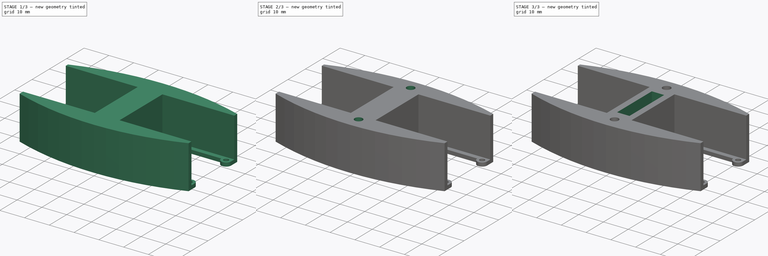
[diagram: build sequence overview — one tinted view per stage of 3, left to right]
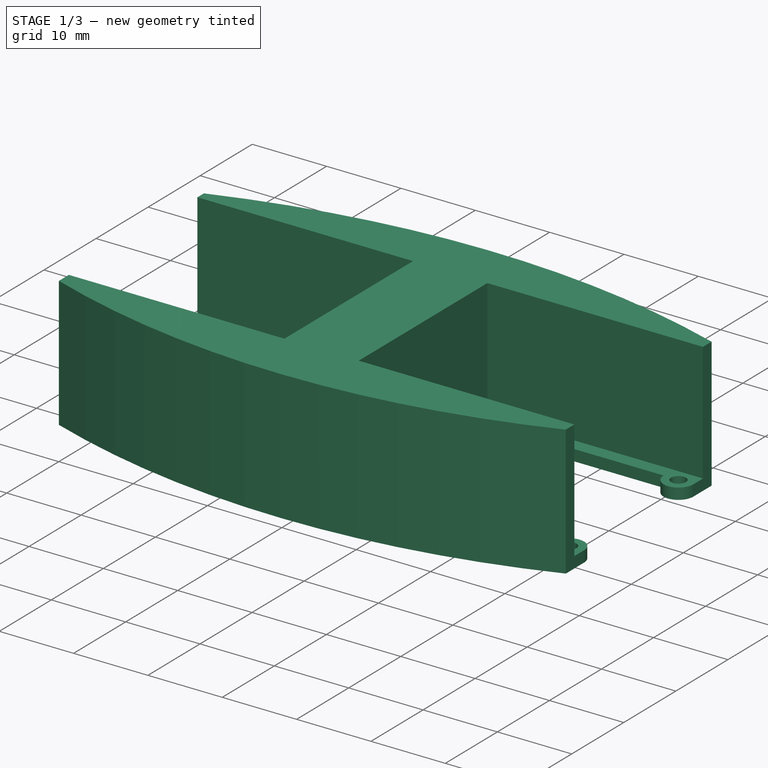
[diagram: stage 1 of 3 — iso view after this stage's code; geometry added in this stage tinted green]
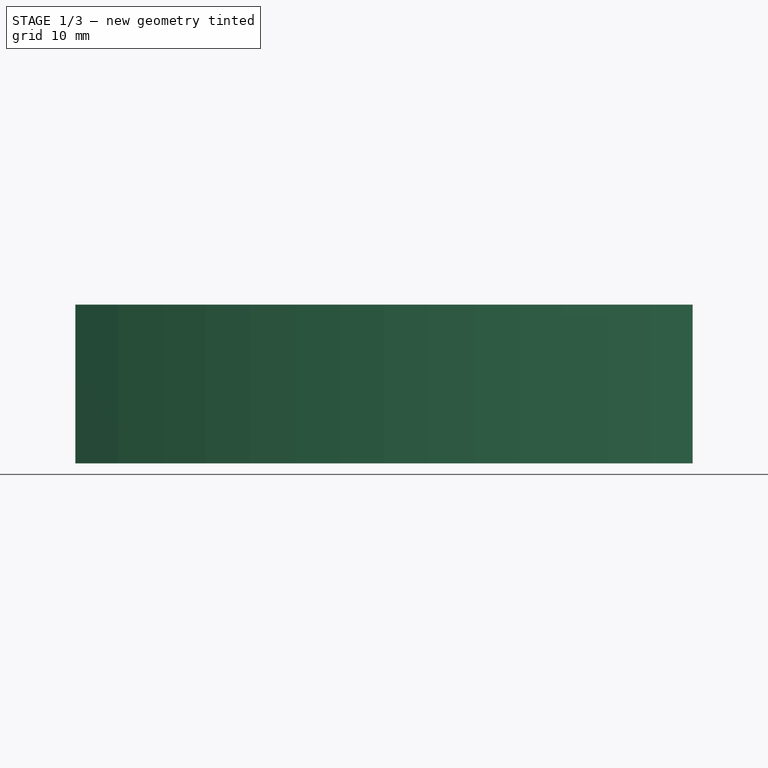
[diagram: stage 1 of 3 — front view after this stage's code; geometry added in this stage tinted green]
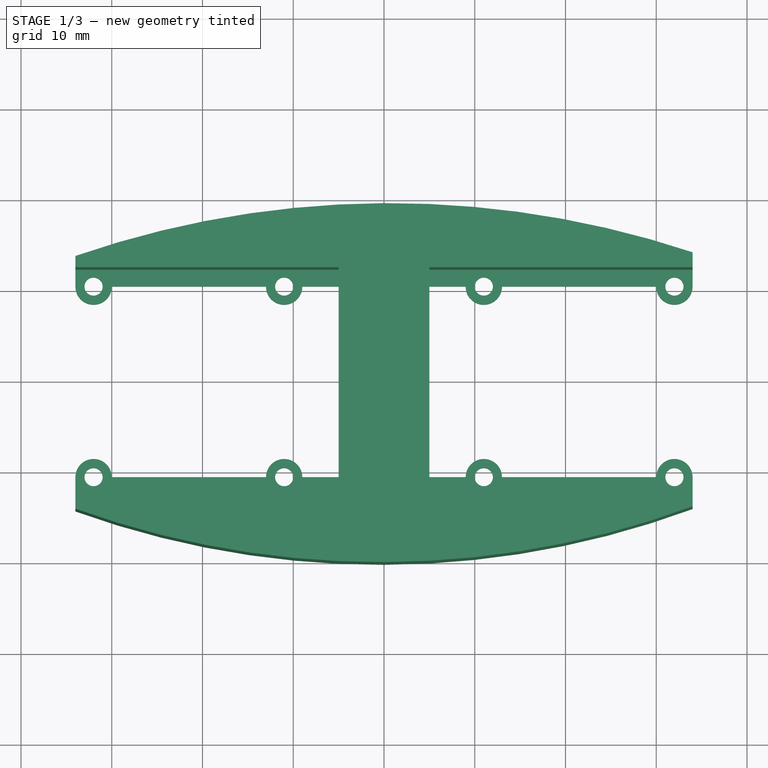
[diagram: stage 1 of 3 — top view after this stage's code; geometry added in this stage tinted green]
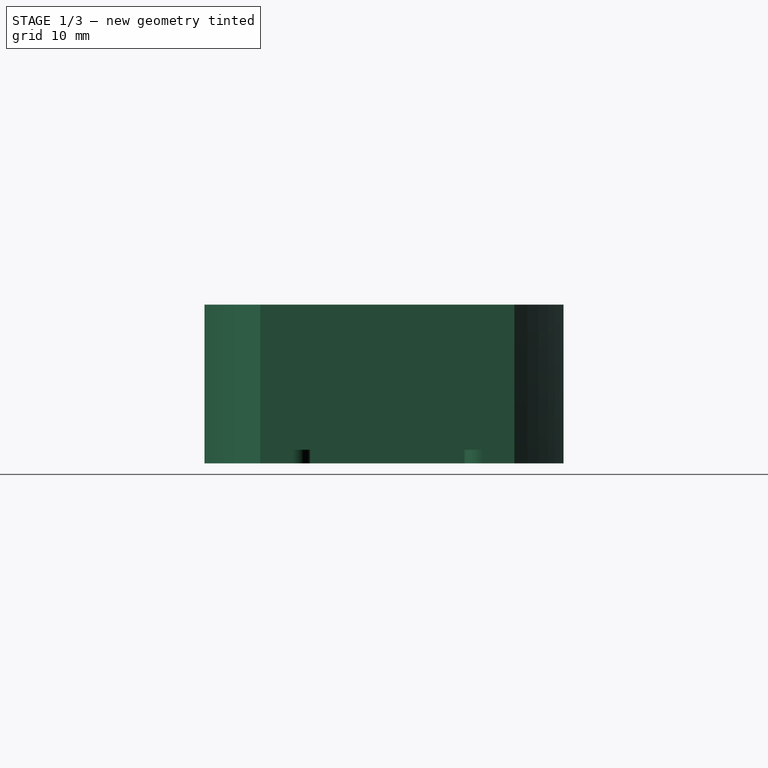
[diagram: stage 1 of 3 — right view after this stage's code; geometry added in this stage tinted green]
FCSTD DOCUMENT  (FreeCAD 0.16R6712 (Git))
Label: 1-1
License: All rights reserved
LicenseURL: http://en.wikipedia.org/wiki/All_rights_reserved
objects: Sketcher::SketchObject×5, PartDesign::Pocket×3, PartDesign::Pad×2
note: 15 computed .brp shape members not serialized (recipe doc carries the construction recipe); baked Part::Feature solids carry a one-line shape summary decoded from their .brp

FEATURE [Sketcher::SketchObject] Sketch
  sketch-geometry (32):
    g0: Circle CenterX=11 CenterY=10.5 CenterZ=0 NormalX=0 NormalY=0 NormalZ=1 Radius=1
    g1: Circle CenterX=11 CenterY=-10.5 CenterZ=0 NormalX=0 NormalY=0 NormalZ=1 Radius=1
    g2: Circle CenterX=32 CenterY=10.5 CenterZ=0 NormalX=0 NormalY=0 NormalZ=1 Radius=1
    g3: Circle CenterX=32 CenterY=-10.5 CenterZ=0 NormalX=0 NormalY=0 NormalZ=1 Radius=1
    g4: LineSegment StartX=13 StartY=10.5 StartZ=0 EndX=30 EndY=10.5 EndZ=0
    g5: LineSegment StartX=9 StartY=10.5 StartZ=0 EndX=5 EndY=10.5 EndZ=0
    g6: ArcOfCircle CenterX=11 CenterY=10.5 CenterZ=0 NormalX=0 NormalY=0 NormalZ=1 Radius=2 StartAngle=3.14159 EndAngle=6.28319
    g7: LineSegment StartX=5 StartY=10.5 StartZ=0 EndX=5 EndY=-10.5 EndZ=0
    g8: LineSegment StartX=5 StartY=-10.5 StartZ=0 EndX=9 EndY=-10.5 EndZ=0
    g9: LineSegment StartX=13 StartY=-10.5 StartZ=0 EndX=30 EndY=-10.5 EndZ=0
    g10: ArcOfCircle CenterX=11 CenterY=-10.5 CenterZ=0 NormalX=0 NormalY=0 NormalZ=1 Radius=2 StartAngle=0 EndAngle=3.14159
    g11: LineSegment StartX=34 StartY=-10.5 StartZ=0 EndX=34 EndY=-14 EndZ=0
    g12: ArcOfCircle CenterX=32 CenterY=-10.5 CenterZ=0 NormalX=0 NormalY=0 NormalZ=1 Radius=2 StartAngle=0 EndAngle=3.14159
    g13: LineSegment StartX=34 StartY=10.5 StartZ=0 EndX=34 EndY=14 EndZ=0
    g14: ArcOfCircle CenterX=32 CenterY=10.5 CenterZ=0 NormalX=0 NormalY=0 NormalZ=1 Radius=2 StartAngle=3.14159 EndAngle=6.28319
    g15: Circle CenterX=-11 CenterY=10.5 CenterZ=0 NormalX=0 NormalY=0 NormalZ=1 Radius=1
    g16: Circle CenterX=-11 CenterY=-10.5 CenterZ=0 NormalX=0 NormalY=0 NormalZ=1 Radius=1
    g17: Circle CenterX=-32 CenterY=10.5 CenterZ=0 NormalX=0 NormalY=0 NormalZ=1 Radius=1
    g18: Circle CenterX=-32 CenterY=-10.5 CenterZ=0 NormalX=0 NormalY=0 NormalZ=1 Radius=1
    g19: LineSegment StartX=-13 StartY=10.5 StartZ=0 EndX=-30 EndY=10.5 EndZ=0
    g20: LineSegment StartX=-9 StartY=10.5 StartZ=0 EndX=-5 EndY=10.5 EndZ=0
    g21: ArcOfCircle CenterX=-11 CenterY=10.5 CenterZ=0 NormalX=0 NormalY=0 NormalZ=1 Radius=2 StartAngle=3.14159 EndAngle=6.28319
    g22: LineSegment StartX=-5 StartY=10.5 StartZ=0 EndX=-5 EndY=-10.5 EndZ=0
    g23: LineSegment StartX=-5 StartY=-10.5 StartZ=0 EndX=-9 EndY=-10.5 EndZ=0
    g24: LineSegment StartX=-13 StartY=-10.5 StartZ=0 EndX=-30 EndY=-10.5 EndZ=0
    g25: ArcOfCircle CenterX=-11 CenterY=-10.5 CenterZ=0 NormalX=0 NormalY=0 NormalZ=1 Radius=2 StartAngle=0 EndAngle=3.14159
    g26: LineSegment StartX=-34 StartY=-10.5 StartZ=0 EndX=-34 EndY=-14.2659 EndZ=0
    g27: ArcOfCircle CenterX=-32 CenterY=-10.5 CenterZ=0 NormalX=0 NormalY=0 NormalZ=1 Radius=2 StartAngle=0 EndAngle=3.14159
    g28: LineSegment StartX=-34 StartY=10.5 StartZ=0 EndX=-34 EndY=13.594 EndZ=0
    g29: ArcOfCircle CenterX=-32 CenterY=10.5 CenterZ=0 NormalX=0 NormalY=0 NormalZ=1 Radius=2 StartAngle=3.14159 EndAngle=6.28319
    g30: ArcOfCircle CenterX=-0.364308 CenterY=79.02 CenterZ=0 NormalX=0 NormalY=0 NormalZ=1 Radius=99.1646 StartAngle=4.36633 EndAngle=5.06627
    g31: ArcOfCircle CenterX=0.598027 CenterY=-86.3696 CenterZ=0 NormalX=0 NormalY=0 NormalZ=1 Radius=105.782 StartAngle=1.24953 EndAngle=1.904
  constraints (74):
    c: Symmetric(g1,g0,g-1)
    c: Symmetric(g2,g3,g-1)
    c: DistanceX(g0,g2) = 21
    c: DistanceY(g1,g0) = 21
    c: DistanceY(g3,g2) = 21
    c: Radius(g1) = 1
    c: Equal(g1,g0)
    c: Equal(g1,g2)
    c: Equal(g1,g3)
    c: Horizontal(g4)
    c: DistanceX(g0,g4) = 2
    c: DistanceY(g4,g0) = 0
    c: Horizontal(g5)
    c: DistanceY(g5,g0) = 0
    c: DistanceX(g5,g5) = 4
    c: Coincident(g6,g0)
    c: Coincident(g6,g5)
    c: Coincident(g6,g4)
    c: Coincident(g7,g5)
    c: Vertical(g7)
    c: Symmetric(g5,g7,g-1)
    c: Coincident(g8,g7)
    c: Horizontal(g8)
    c: Symmetric(g8,g5,g-1)
    c: Horizontal(g9)
    c: Symmetric(g9,g4,g-1)
    c: Symmetric(g9,g4,g-1)
    c: Coincident(g10,g1)
    c: Coincident(g10,g9)
    c: Coincident(g10,g8)
    c: Vertical(g11)
    c: DistanceX(g3,g11) = 2
    c: DistanceY(g11,g3) = 0
    c: DistanceY(g11,g11) = 3.5
    c: Coincident(g12,g3)
    c: Coincident(g12,g9)
    c: Coincident(g12,g11)
    c: Vertical(g13)
    c: DistanceY(g13,g2) = 0
    c: DistanceX(g2,g13) = 2
    c: DistanceY(g13,g13) = 3.5
    c: Coincident(g14,g2)
    c: Coincident(g14,g4)
    c: Coincident(g14,g13)
    c: DistanceX(g-1,g7) = 5
    c: Radius(g16) = 1
    c: Equal(g16,g15)
    c: Equal(g16,g17)
    c: Equal(g16,g18)
    c: Horizontal(g19)
    c: Horizontal(g20)
    c: Coincident(g21,g15)
    c: Coincident(g21,g20)
    c: Coincident(g21,g19)
    c: Coincident(g22,g20)
    c: Vertical(g22)
    c: Coincident(g23,g22)
    c: Horizontal(g23)
    c: Horizontal(g24)
    c: Coincident(g25,g16)
    c: Coincident(g25,g24)
    c: Coincident(g25,g23)
    c: Vertical(g26)
    c: Coincident(g27,g18)
    c: Coincident(g27,g24)
    c: Coincident(g27,g26)
    c: Vertical(g28)
    c: Coincident(g29,g17)
    c: Coincident(g29,g19)
    c: Coincident(g29,g28)
    c: Coincident(g30,g26)
    c: Coincident(g30,g11)
    c: Coincident(g31,g28)
    c: Coincident(g31,g13)
FEATURE [PartDesign::Pad] Pad
  Length = 1.5
  Length2 = 100
  Sketch = -> Sketch
  Type = 0
FEATURE [Sketcher::SketchObject] Sketch001
  ExternalGeometry = -> [Pad]
  Placement = pos=(0,0,1.5) rot=(0,0,1;0rad)
  Support = -> Pad [Face34]
  sketch-geometry (21):
    g0: GeomPoint [constr] X=34 Y=12.35 Z=0
    g1: GeomPoint [constr] X=34 Y=-12.35 Z=0
    g2: GeomPoint [constr] X=-34 Y=12.35 Z=0
    g3: GeomPoint [constr] X=-34 Y=-12.35 Z=0
    g4: LineSegment StartX=-34 StartY=12.35 StartZ=0 EndX=-5 EndY=12.35 EndZ=0
    g5: LineSegment StartX=-5 StartY=12.35 StartZ=0 EndX=-5 EndY=10.5 EndZ=0
    g6: LineSegment StartX=-5 StartY=10.5 StartZ=0 EndX=-5 EndY=-10.5 EndZ=0
    g7: LineSegment StartX=-5 StartY=-10.5 StartZ=0 EndX=-5 EndY=-12.35 EndZ=0
    g8: LineSegment StartX=-34 StartY=-12.35 StartZ=0 EndX=-5 EndY=-12.35 EndZ=0
    g9: LineSegment StartX=34 StartY=12.35 StartZ=0 EndX=5 EndY=12.35 EndZ=0
    g10: LineSegment StartX=5 StartY=12.35 StartZ=0 EndX=5 EndY=10.5 EndZ=0
    g11: LineSegment StartX=5 StartY=10.5 StartZ=0 EndX=5 EndY=-10.5 EndZ=0
    g12: LineSegment StartX=5 StartY=-10.5 StartZ=0 EndX=5 EndY=-12.35 EndZ=0
    g13: LineSegment StartX=34 StartY=-12.35 StartZ=0 EndX=5 EndY=-12.35 EndZ=0
    g14: LineSegment StartX=-34 StartY=-12.35 StartZ=0 EndX=-34 EndY=-14.2659 EndZ=0
    g15: LineSegment StartX=34 StartY=-12.35 StartZ=0 EndX=34 EndY=-14 EndZ=0
    g16: LineSegment StartX=34 StartY=12.35 StartZ=0 EndX=34 EndY=14 EndZ=0
    g17: GeomPoint [constr] X=-2.1898e-05 Y=-20.144 Z=0
    g18: ArcOfCircle CenterX=-0.364308 CenterY=79.02 CenterZ=0 NormalX=0 NormalY=0 NormalZ=1 Radius=99.1646 StartAngle=4.36633 EndAngle=5.06627
    g19: ArcOfCircle CenterX=0.598027 CenterY=-86.3696 CenterZ=0 NormalX=0 NormalY=0 NormalZ=1 Radius=105.782 StartAngle=1.24953 EndAngle=1.904
    g20: LineSegment StartX=-34 StartY=13.594 StartZ=0 EndX=-34 EndY=12.35 EndZ=0
  constraints (46):
    c: PointOnObject(g0,g-4)
    c: PointOnObject(g1,g-3)
    c: Symmetric(g1,g0,g-1)
    c: DistanceY(g1,g0) = 24.7
    c: PointOnObject(g2,g-8)
    c: Symmetric(g3,g2,g-1)
    c: DistanceY(g3,g2) = 24.7
    c: Coincident(g4,g2)
    c: Horizontal(g4)
    c: Coincident(g5,g4)
    c: Coincident(g5,g-9)
    c: Coincident(g6,g5)
    c: Coincident(g6,g-10)
    c: Coincident(g7,g6)
    c: Coincident(g8,g3)
    c: Coincident(g8,g7)
    c: Horizontal(g8)
    c: Coincident(g9,g0)
    c: Horizontal(g9)
    c: Coincident(g10,g9)
    c: Coincident(g10,g-12)
    c: Vertical(g5)
    c: Vertical(g7)
    c: Coincident(g11,g10)
    c: Coincident(g11,g-11)
    c: Coincident(g12,g11)
    c: Coincident(g13,g1)
    c: Coincident(g13,g12)
    c: Horizontal(g13)
    c: Vertical(g12)
    c: Vertical(g10)
    c: Coincident(g14,g3)
    c: Coincident(g14,g-7)
    c: Coincident(g15,g1)
    c: Coincident(g15,g-5)
    c: Coincident(g16,g0)
    c: Coincident(g16,g-6)
    c: PointOnObject(g17,g-5)
    c: Coincident(g18,g14)
    c: Coincident(g18,g15)
    c: PointOnObject(g17,g18)
    c: Coincident(g19,g-8)
    c: Coincident(g19,g16)
    c: Tangent(g19,g-6)
    c: Coincident(g20,g19)
    c: Coincident(g20,g2)
FEATURE [PartDesign::Pad] Pad001
  Length = 16
  Length2 = 100
  Sketch = -> Sketch001
  Type = 0
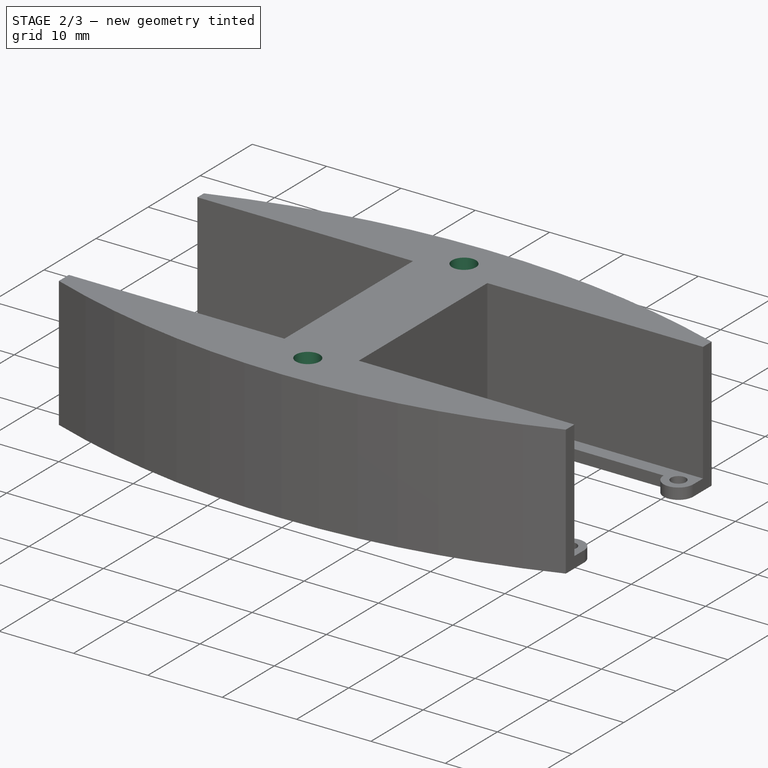
[diagram: stage 2 of 3 — iso view after this stage's code; geometry added in this stage tinted green]
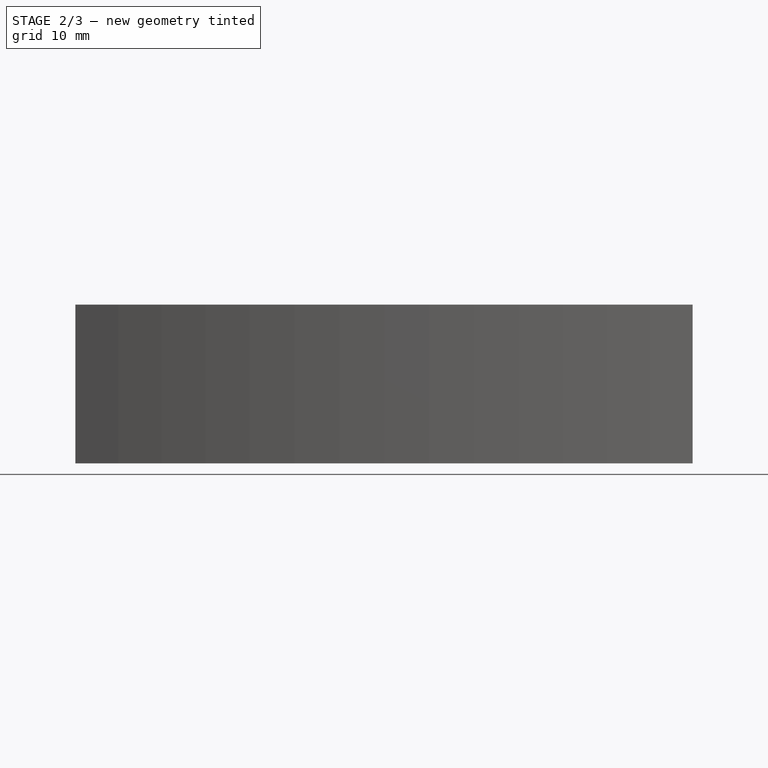
[diagram: stage 2 of 3 — front view after this stage's code; geometry added in this stage tinted green]
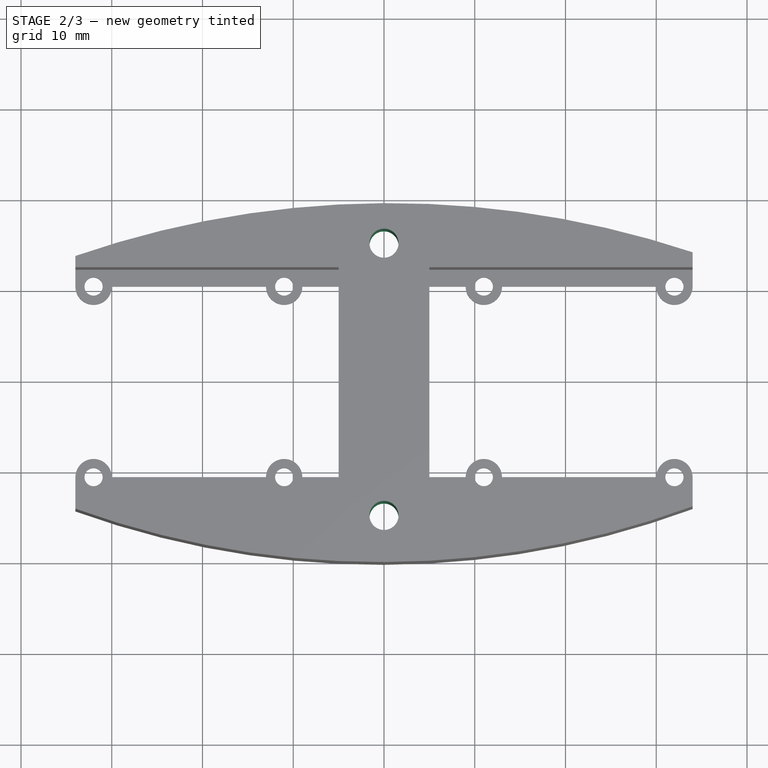
[diagram: stage 2 of 3 — top view after this stage's code; geometry added in this stage tinted green]
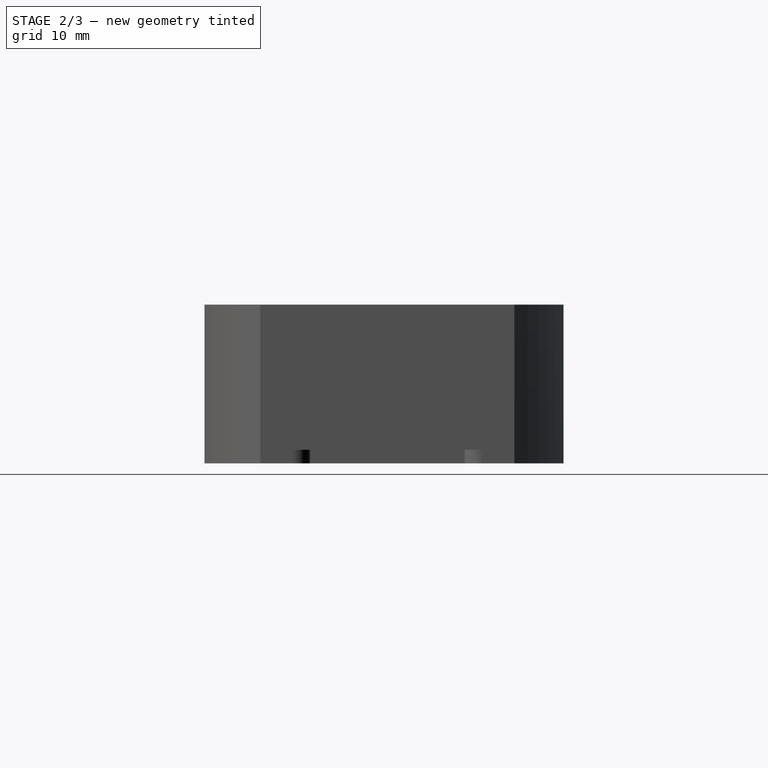
[diagram: stage 2 of 3 — right view after this stage's code; geometry added in this stage tinted green]
FEATURE [Sketcher::SketchObject] Sketch002
  Placement = pos=(0,0,0) rot=(1,0,0;3.14159rad)
  Support = -> Pad001 [Face4]
  sketch-geometry (2):
    g0: Circle CenterX=0 CenterY=15 CenterZ=0 NormalX=0 NormalY=0 NormalZ=1 Radius=1.6
    g1: Circle CenterX=0 CenterY=-15 CenterZ=0 NormalX=0 NormalY=0 NormalZ=1 Radius=1.6
  constraints (6):
    c: PointOnObject(g0,g-2)
    c: PointOnObject(g1,g-2)
    c: Radius(g1) = 1.6
    c: Equal(g1,g0)
    c: Symmetric(g1,g0,g-1)
    c: DistanceY(g1,g0) = 30
FEATURE [PartDesign::Pocket] Pocket
  Length = 30
  Sketch = -> Sketch002
  Type = 0
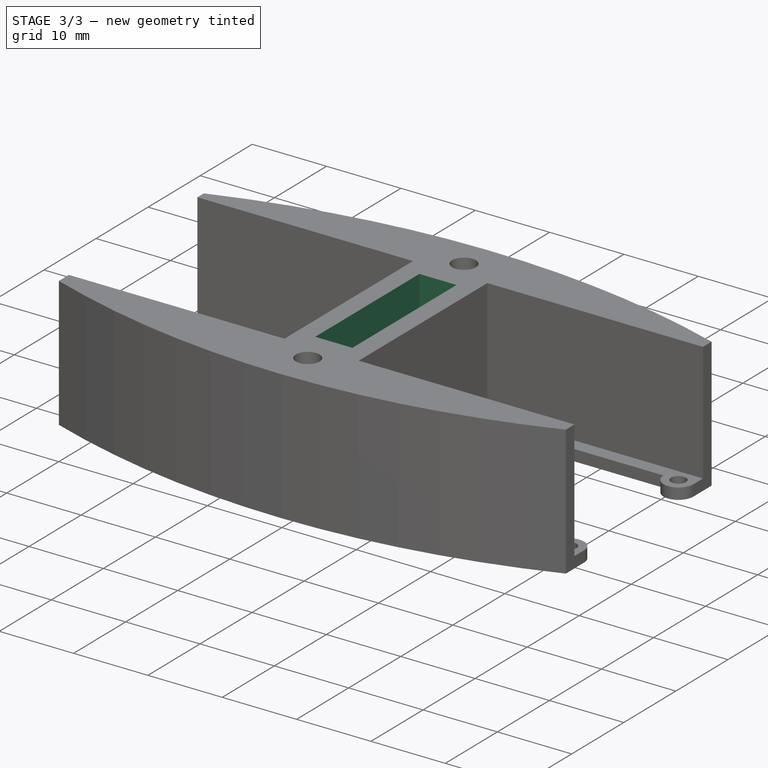
[diagram: stage 3 of 3 — iso view after this stage's code; geometry added in this stage tinted green]
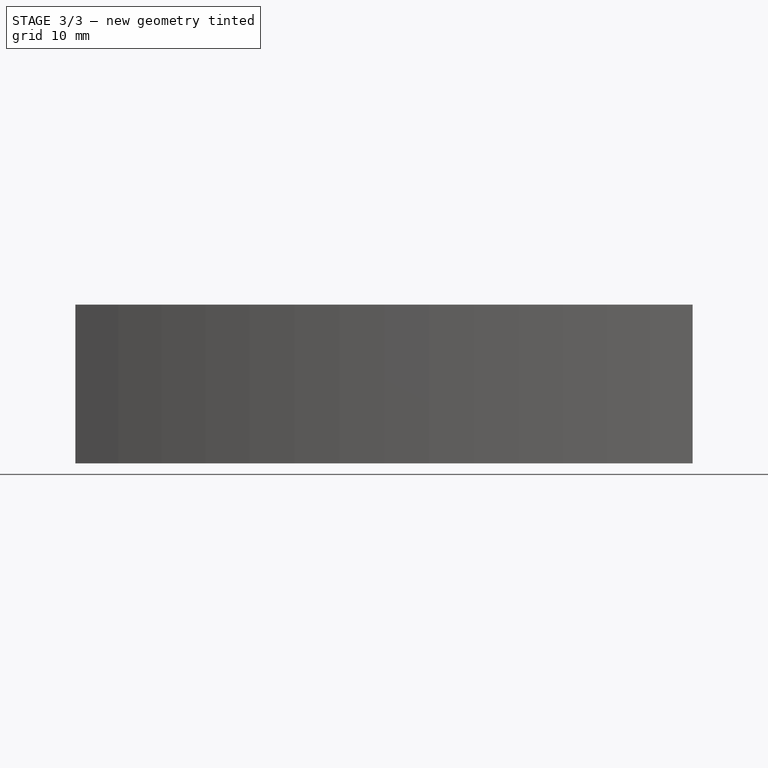
[diagram: stage 3 of 3 — front view after this stage's code; geometry added in this stage tinted green]
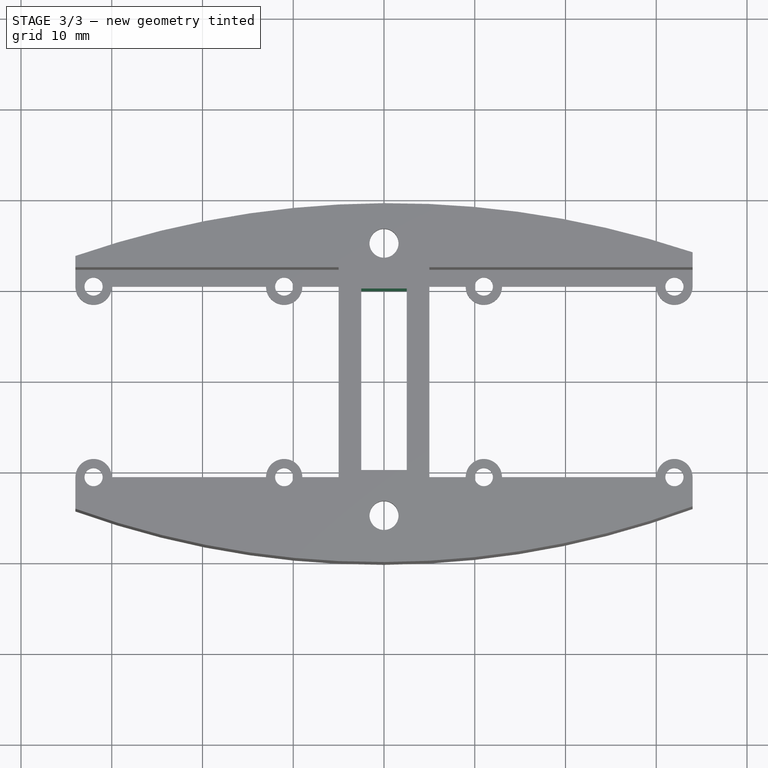
[diagram: stage 3 of 3 — top view after this stage's code; geometry added in this stage tinted green]
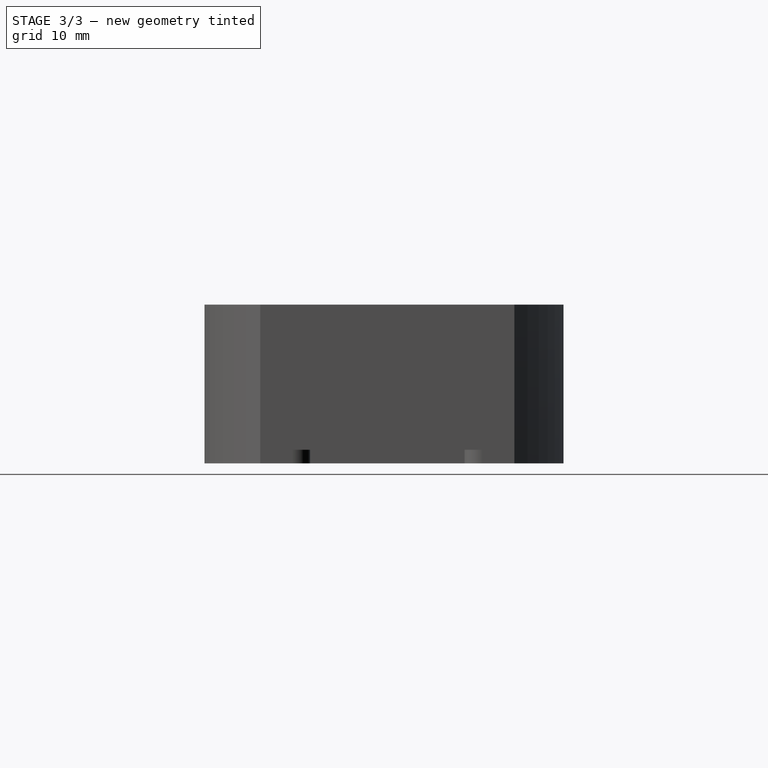
[diagram: stage 3 of 3 — right view after this stage's code; geometry added in this stage tinted green]
FEATURE [Sketcher::SketchObject] Sketch003
  ExternalGeometry = -> [Pocket]
  Placement = pos=(0,0,0) rot=(1,0,0;3.14159rad)
  Support = -> Pocket [Face4]
  sketch-geometry (14):
    g0: LineSegment StartX=1.49123 StartY=12.3969 StartZ=0 EndX=2.99998 EndY=14.9899 EndZ=0
    g1: LineSegment StartX=2.99998 StartY=14.9899 StartZ=0 EndX=1.50875 EndY=17.593 EndZ=0
    g2: LineSegment StartX=1.50875 StartY=17.593 StartZ=0 EndX=-1.49123 EndY=17.6031 EndZ=0
    g3: LineSegment StartX=-1.49123 StartY=17.6031 StartZ=0 EndX=-2.99998 EndY=15.0101 EndZ=0
    g4: LineSegment StartX=-2.99998 StartY=15.0101 StartZ=0 EndX=-1.50875 EndY=12.407 EndZ=0
    g5: LineSegment StartX=-1.50875 StartY=12.407 StartZ=0 EndX=1.49123 EndY=12.3969 EndZ=0
    g6: Circle [constr] CenterX=0 CenterY=15 CenterZ=0 NormalX=0 NormalY=0 NormalZ=1 Radius=3
    g7: LineSegment StartX=1.36054 StartY=-17.6737 StartZ=0 EndX=2.9958 EndY=-15.1586 EndZ=0
    g8: LineSegment StartX=2.9958 StartY=-15.1586 StartZ=0 EndX=1.63527 EndY=-12.4849 EndZ=0
    g9: LineSegment StartX=1.63527 StartY=-12.4849 StartZ=0 EndX=-1.36054 EndY=-12.3263 EndZ=0
    g10: LineSegment StartX=-1.36054 StartY=-12.3263 StartZ=0 EndX=-2.9958 EndY=-14.8414 EndZ=0
    g11: LineSegment StartX=-2.9958 StartY=-14.8414 StartZ=0 EndX=-1.63527 EndY=-17.5151 EndZ=0
    g12: LineSegment StartX=-1.63527 StartY=-17.5151 StartZ=0 EndX=1.36054 EndY=-17.6737 EndZ=0
    g13: Circle [constr] CenterX=0 CenterY=-15 CenterZ=0 NormalX=0 NormalY=0 NormalZ=1 Radius=3
  constraints (30):
    c: Coincident(g0,g1)
    c: Coincident(g1,g2)
    c: Coincident(g2,g3)
    c: Coincident(g3,g4)
    c: Coincident(g4,g5)
    c: Coincident(g5,g0)
    c: Equal(g0, g1-g5) x5
    c: PointOnObject(g0,g6)
    c: PointOnObject(g1,g6)
    c: PointOnObject(g2,g6)
    c: PointOnObject(g3,g6)
    c: PointOnObject(g4,g6)
    c: PointOnObject(g5,g6)
    c: Coincident(g6,g-3)
    c: Coincident(g7,g8)
    c: Coincident(g8,g9)
    c: Coincident(g9,g10)
    c: Coincident(g10,g11)
    c: Coincident(g11,g12)
    c: Coincident(g12,g7)
    c: Equal(g7, g8-g12) x5
    c: PointOnObject(g7,g13)
    c: PointOnObject(g8,g13)
    c: PointOnObject(g9,g13)
    c: PointOnObject(g10,g13)
    c: PointOnObject(g11,g13)
    c: PointOnObject(g12,g13)
    c: Coincident(g13,g-4)
    c: Radius(g6) = 3
    c: Equal(g6,g13)
FEATURE [PartDesign::Pocket] Pocket001
  Length = 14
  Sketch = -> Sketch003
  Type = 0
FEATURE [Sketcher::SketchObject] Sketch004
  Placement = pos=(0,0,17.5) rot=(0,0,1;0rad)
  Support = -> Pocket001 [Face62]
  sketch-geometry (4):
    g0: LineSegment StartX=-2.5 StartY=10 StartZ=0 EndX=2.5 EndY=10 EndZ=0
    g1: LineSegment StartX=2.5 StartY=10 StartZ=0 EndX=2.5 EndY=-10 EndZ=0
    g2: LineSegment StartX=2.5 StartY=-10 StartZ=0 EndX=-2.5 EndY=-10 EndZ=0
    g3: LineSegment StartX=-2.5 StartY=-10 StartZ=0 EndX=-2.5 EndY=10 EndZ=0
  constraints (12):
    c: Coincident(g0,g1)
    c: Coincident(g1,g2)
    c: Coincident(g2,g3)
    c: Coincident(g3,g0)
    c: Horizontal(g0)
    c: Horizontal(g2)
    c: Vertical(g1)
    c: Vertical(g3)
    c: DistanceY(g1,g0) = 20
    c: DistanceX(g0,g0) = 5
    c: Symmetric(g0,g0,g-2)
    c: Symmetric(g1,g0,g-1)
FEATURE [PartDesign::Pocket] Pocket002
  Length = 20
  Sketch = -> Sketch004
  Type = 0
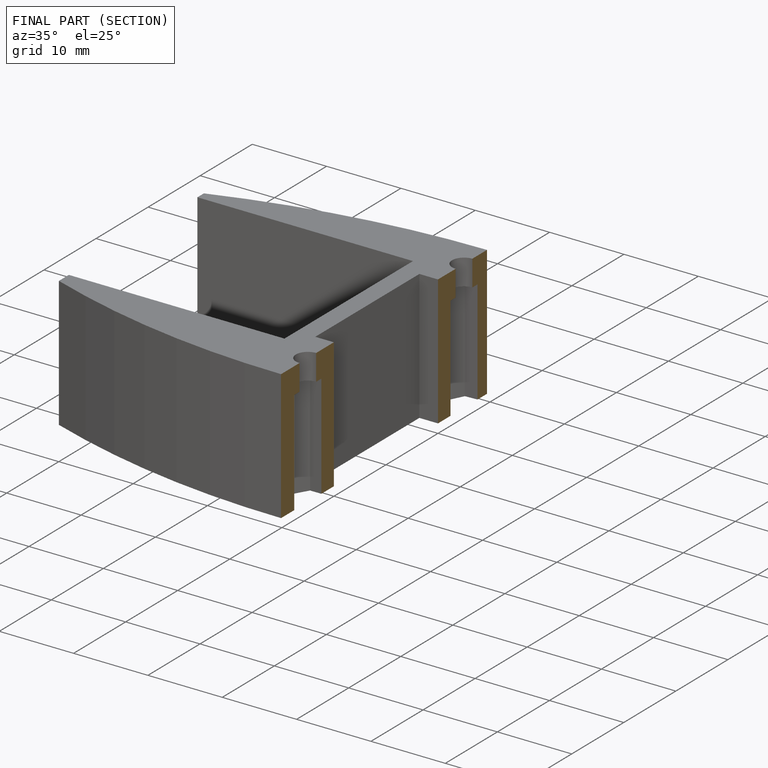
[diagram: finished part — half-section view (interior)]
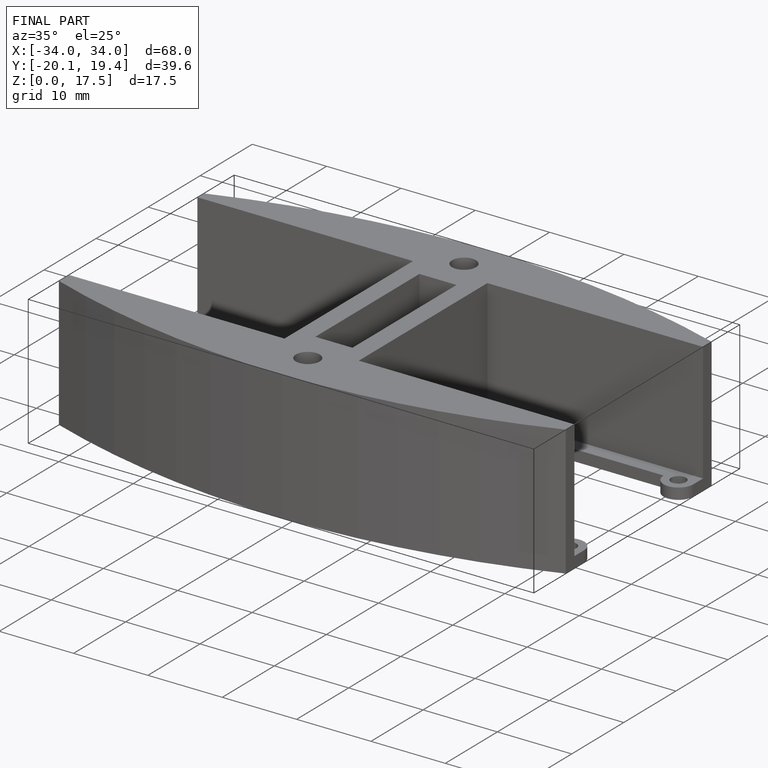
[diagram: finished part — iso view with bounding-box wireframe]
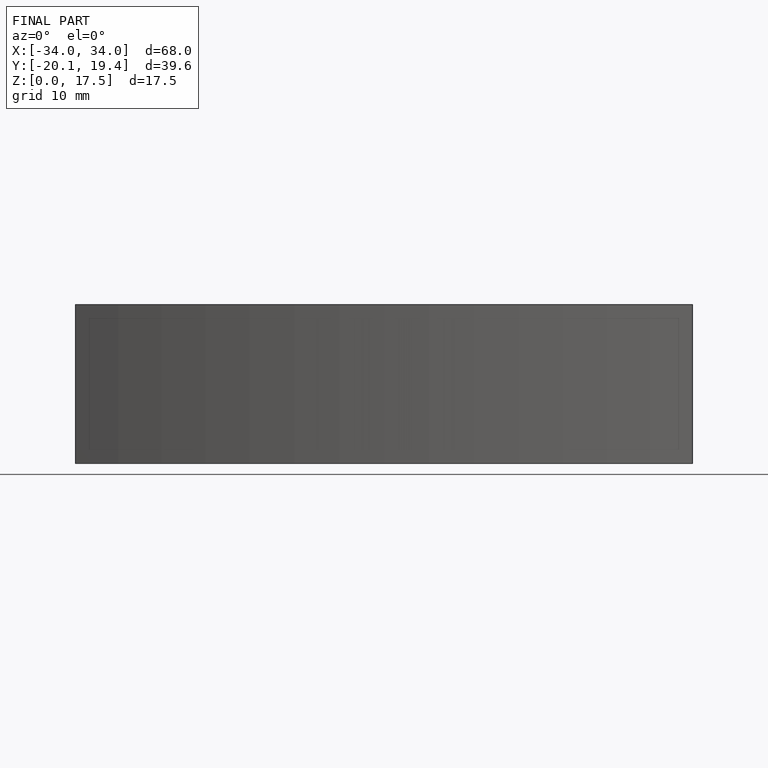
[diagram: finished part — front view with bounding-box wireframe]
